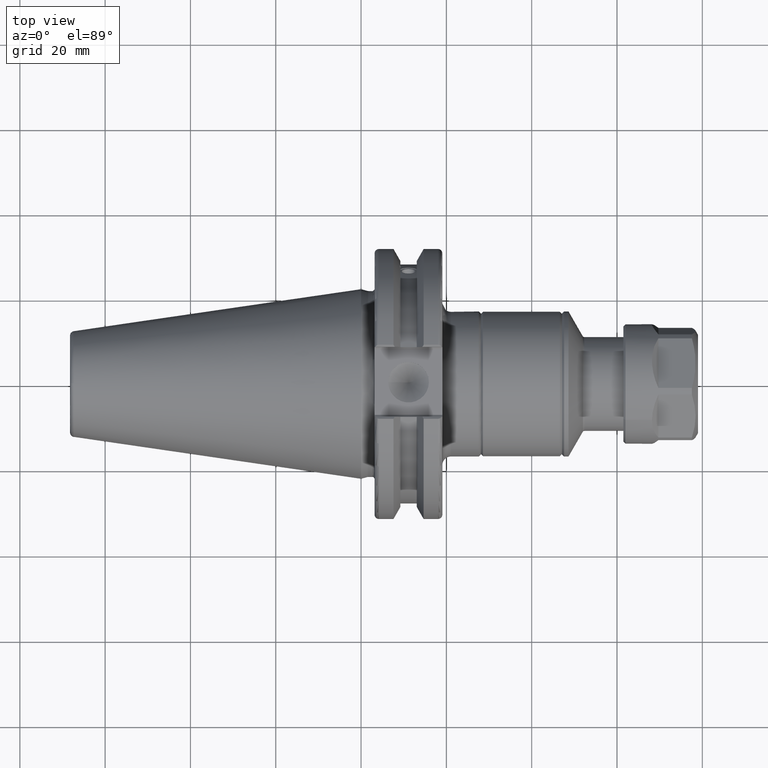
[diagram: clean part render]
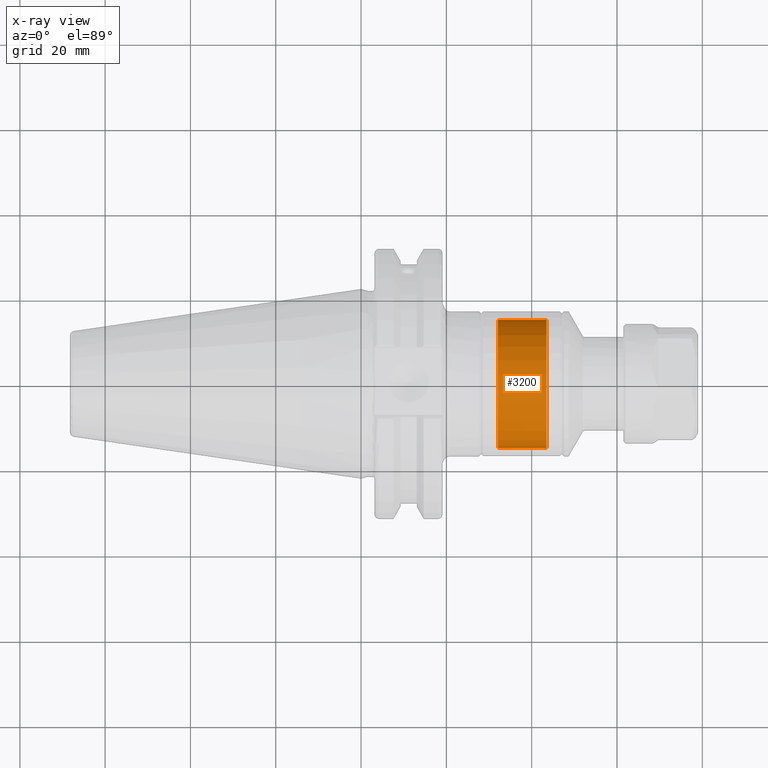
[diagram: x-ray — body ghosted, one internal face saturated and labeled with its STEP entity id]
A machine part, top view, then the same camera in x-ray: the body is ghosted and one INTERNAL B-rep face — a face not visible from any outside direction — is saturated and labeled: STEP entity #3200.
In plain terms, the highlighted cylindrical surface (bore or boss wall) has radius 15 mm, axis along (1, 0, 0).
Its self-contained STEP definition (entity closure, byte-faithful):
#313=CYLINDRICAL_SURFACE('',#3553,15.);
#388=FACE_OUTER_BOUND('',#590,.T.);
#590=EDGE_LOOP('',(#2259,#2260,#2261,#2262,#2263));
#835=LINE('',#5100,#1023);
#1023=VECTOR('',#4054,15.);
#1211=CIRCLE('',#3551,15.);
#1212=CIRCLE('',#3552,15.);
#1213=CIRCLE('',#3554,15.);
#1423=VERTEX_POINT('',#5093);
#1424=VERTEX_POINT('',#5095);
#1425=VERTEX_POINT('',#5099);
#1750=EDGE_CURVE('',#1423,#1424,#1211,.T.);
#1751=EDGE_CURVE('',#1424,#1423,#1212,.T.);
#1752=EDGE_CURVE('',#1424,#1425,#835,.T.);
#1753=EDGE_CURVE('',#1425,#1425,#1213,.T.);
#2259=ORIENTED_EDGE('',*,*,#1750,.F.);
#2260=ORIENTED_EDGE('',*,*,#1751,.F.);
#2261=ORIENTED_EDGE('',*,*,#1752,.T.);
#2262=ORIENTED_EDGE('',*,*,#1753,.T.);
#2263=ORIENTED_EDGE('',*,*,#1752,.F.);
#3200=ADVANCED_FACE('',(#388),#313,.T.);
#3551=AXIS2_PLACEMENT_3D('',#5096,#4048,#4049);
#3552=AXIS2_PLACEMENT_3D('',#5097,#4050,#4051);
#3553=AXIS2_PLACEMENT_3D('',#5098,#4052,#4053);
#3554=AXIS2_PLACEMENT_3D('',#5101,#4055,#4056);
#4048=DIRECTION('center_axis',(1.,0.,0.));
#4049=DIRECTION('ref_axis',(0.,-1.,0.));
#4050=DIRECTION('center_axis',(1.,0.,0.));
#4051=DIRECTION('ref_axis',(0.,-1.,0.));
#4052=DIRECTION('center_axis',(1.,0.,0.));
#4053=DIRECTION('ref_axis',(0.,1.,0.));
#4054=DIRECTION('',(-1.,0.,0.));
#4055=DIRECTION('center_axis',(1.,0.,0.));
#4056=DIRECTION('ref_axis',(0.,0.,-1.));
#5093=CARTESIAN_POINT('',(43.5,15.,1.83697019872103E-15));
#5095=CARTESIAN_POINT('',(43.5,-15.,-1.83697019872103E-15));
#5096=CARTESIAN_POINT('Origin',(43.5,0.,0.));
#5097=CARTESIAN_POINT('Origin',(43.5,0.,0.));
#5098=CARTESIAN_POINT('Origin',(37.9,0.,0.));
#5099=CARTESIAN_POINT('',(32.1,-15.,-1.83697019872103E-15));
#5100=CARTESIAN_POINT('',(37.9,-15.,-1.83697019872103E-15));
#5101=CARTESIAN_POINT('Origin',(32.1,0.,0.));